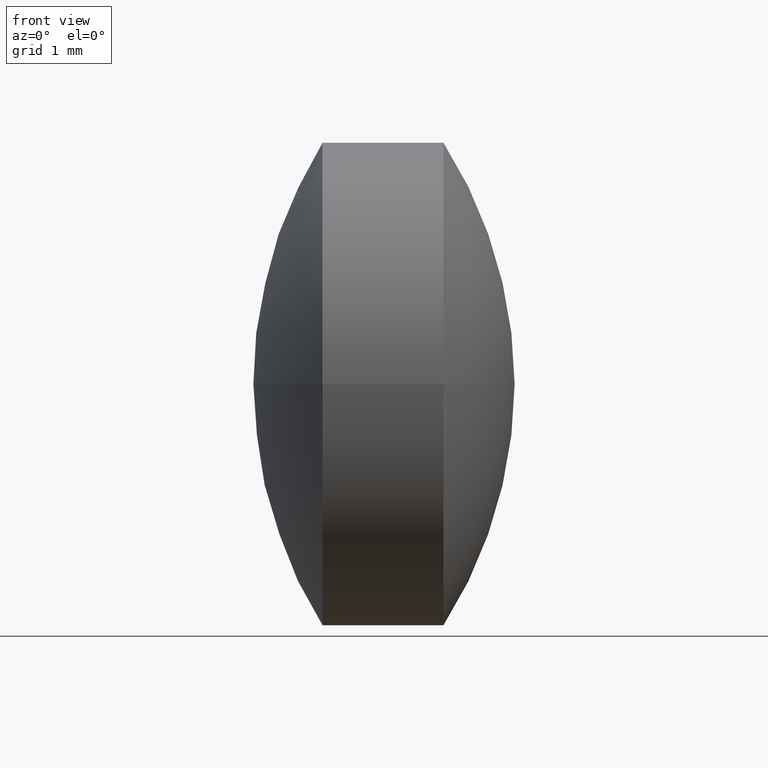
[diagram: clean part render]
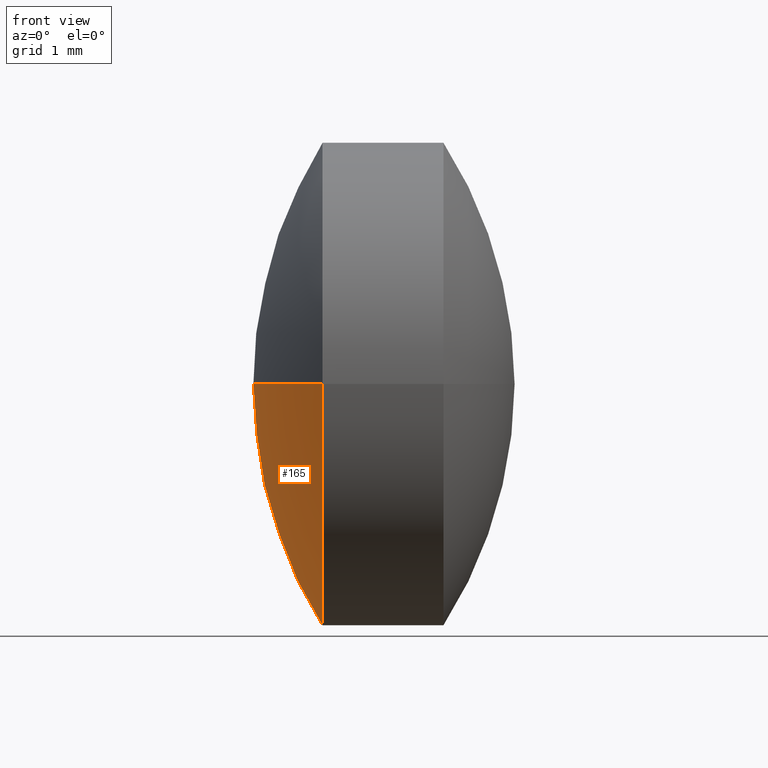
[diagram: same view with one face highlighted and labeled with its STEP entity id]
A machine part, front view. The second image highlights one B-rep face of the part: STEP entity #165.
In plain terms, the highlighted spherical surface has radius 3.784 mm.
Its self-contained STEP definition (entity closure, byte-faithful):
#9 = AXIS2_PLACEMENT_3D ( 'NONE', #20, #253, #107 ) ;
#11 = VERTEX_POINT ( 'NONE', #222 ) ;
#20 = CARTESIAN_POINT ( 'NONE',  ( 9.711656042240909100, 5.242101976729382600, 0.0000000000000000000 ) ) ;
#24 = CARTESIAN_POINT ( 'NONE',  ( 12.92394828561172600, 5.242101976729416400, 0.0000000000000000000 ) ) ;
#40 = ORIENTED_EDGE ( 'NONE', *, *, #204, .F. ) ;
#45 = AXIS2_PLACEMENT_3D ( 'NONE', #24, #207, #76 ) ;
#69 = CIRCLE ( 'NONE', #90, 3.784021862624418200 ) ;
#76 = DIRECTION ( 'NONE',  ( 0.0000000000000000000, 1.000000000000000000, 1.224646799147353200E-016 ) ) ;
#83 = SPHERICAL_SURFACE ( 'NONE', #102, 3.784021862624419100 ) ;
#90 = AXIS2_PLACEMENT_3D ( 'NONE', #238, #224, #250 ) ;
#94 = CARTESIAN_POINT ( 'NONE',  ( 12.92394828561172600, 5.242101976729416400, 0.0000000000000000000 ) ) ;
#102 = AXIS2_PLACEMENT_3D ( 'NONE', #94, #298, #108 ) ;
#107 = DIRECTION ( 'NONE',  ( -5.811323644522207800E-014, -1.000000000000000000, 0.0000000000000000000 ) ) ;
#108 = DIRECTION ( 'NONE',  ( 5.776265727531612200E-014, 1.000000000000000000, 0.0000000000000000000 ) ) ;
#138 = VERTEX_POINT ( 'NONE', #178 ) ;
#140 = ORIENTED_EDGE ( 'NONE', *, *, #151, .T. ) ;
#146 = VERTEX_POINT ( 'NONE', #251 ) ;
#151 = EDGE_CURVE ( 'NONE', #138, #11, #167, .T. ) ;
#165 = ADVANCED_FACE ( 'NONE', ( #226 ), #83, .T. ) ;
#167 = CIRCLE ( 'NONE', #9, 2.000000000000032900 ) ;
#171 = EDGE_CURVE ( 'NONE', #11, #146, #177, .T. ) ;
#177 = CIRCLE ( 'NONE', #45, 3.784021862624419100 ) ;
#178 = CARTESIAN_POINT ( 'NONE',  ( 9.711656042241026300, 7.242101976729417200, 0.0000000000000000000 ) ) ;
#204 = EDGE_CURVE ( 'NONE', #138, #146, #69, .T. ) ;
#207 = DIRECTION ( 'NONE',  ( 7.081411840868978900E-030, 1.224646799147353200E-016, -1.000000000000000000 ) ) ;
#222 = CARTESIAN_POINT ( 'NONE',  ( 9.711656042240793600, 3.242101976729567800, -2.449293598294747300E-016 ) ) ;
#224 = DIRECTION ( 'NONE',  ( 0.0000000000000000000, 0.0000000000000000000, 1.000000000000000000 ) ) ;
#226 = FACE_OUTER_BOUND ( 'NONE', #294, .T. ) ;
#238 = CARTESIAN_POINT ( 'NONE',  ( 12.92394828561172600, 5.242101976729416400, 0.0000000000000000000 ) ) ;
#250 = DIRECTION ( 'NONE',  ( 1.000000000000000000, 0.0000000000000000000, 0.0000000000000000000 ) ) ;
#251 = CARTESIAN_POINT ( 'NONE',  ( 9.139926422987308300, 5.242101976729635700, 0.0000000000000000000 ) ) ;
#253 = DIRECTION ( 'NONE',  ( -1.000000000000000000, 5.782411586589156700E-014, -0.0000000000000000000 ) ) ;
#276 = ORIENTED_EDGE ( 'NONE', *, *, #171, .T. ) ;
#294 = EDGE_LOOP ( 'NONE', ( #140, #276, #40 ) ) ;
#298 = DIRECTION ( 'NONE',  ( 0.0000000000000000000, 0.0000000000000000000, -1.000000000000000000 ) ) ;